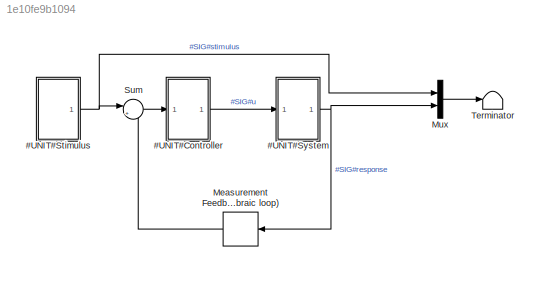
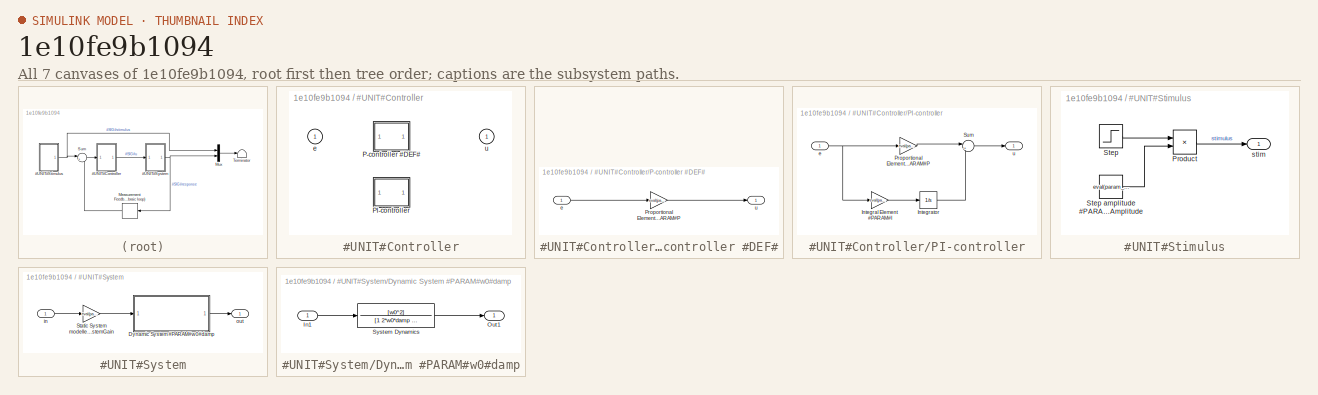
[diagram: thumbnail index - all 7 canvases of the model, root first then tree order]
MODEL slx_1e10fe9b1094
KIND model
WORKSPACE source: MAT-file member
WORKSPACE STOVICAL: struct (value not decoded)
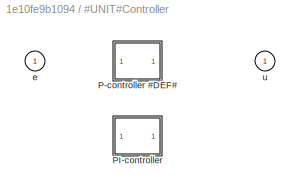
BLOCK [SubSystem] #UNIT#Controller
  Ports = [1, 1]
  RequestExecContextInheritance = off
  Variant = on
BLOCK [SubSystem] #UNIT#Controller/P-controller #DEF#
  Ports = [1, 1]
  RequestExecContextInheritance = off
  VariantControl = varsys_cond_9012b32a464bd3373daa07b1fc176436 == 1
BLOCK [Gain] #UNIT#Controller/P-controller #DEF#/Proportional Element #PARAM#P
  Gain = eval(param_3c9c89c931886ed3127a48daf9f95107)
  OutDataTypeStr = Inherit: Inherit via internal rule
  ParamDataTypeStr = Inherit: Inherit via internal rule
  SaturateOnIntegerOverflow = off
BLOCK [Inport] #UNIT#Controller/P-controller #DEF#/e
  IconDisplay = Port number
BLOCK [Outport] #UNIT#Controller/P-controller #DEF#/u
  IconDisplay = Port number
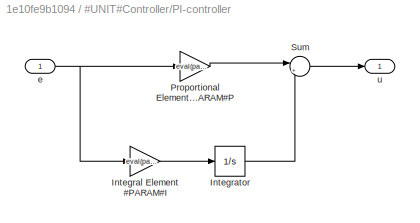
BLOCK [SubSystem] #UNIT#Controller/PI-controller
  Ports = [1, 1]
  RequestExecContextInheritance = off
  VariantControl = varsys_cond_9012b32a464bd3373daa07b1fc176436 == 2
BLOCK [Gain] #UNIT#Controller/PI-controller/Integral Element #PARAM#I
  Gain = eval(param_a6ec8c1abcd3e361be1ac1b9cb9444f5)
  OutDataTypeStr = Inherit: Inherit via internal rule
  ParamDataTypeStr = Inherit: Inherit via internal rule
  SaturateOnIntegerOverflow = off
BLOCK [Integrator] #UNIT#Controller/PI-controller/Integrator
  Ports = [1, 1]
BLOCK [Gain] #UNIT#Controller/PI-controller/Proportional Element #PARAM#P
  Gain = eval(param_5f7e5cb4a090d61c0e7cb0acc03122bf)
  OutDataTypeStr = Inherit: Inherit via internal rule
  ParamDataTypeStr = Inherit: Inherit via internal rule
  SaturateOnIntegerOverflow = off
BLOCK [Sum] #UNIT#Controller/PI-controller/Sum
  IconShape = round
  InputSameDT = off
  Inputs = |++
  OutDataTypeStr = Inherit: Inherit via internal rule
  Ports = [2, 1]
  SaturateOnIntegerOverflow = off
BLOCK [Inport] #UNIT#Controller/PI-controller/e
  IconDisplay = Port number
BLOCK [Outport] #UNIT#Controller/PI-controller/u
  IconDisplay = Port number
BLOCK [Inport] #UNIT#Controller/e
  IconDisplay = Port number
BLOCK [Outport] #UNIT#Controller/u
  IconDisplay = Port number
BLOCK [SubSystem] #UNIT#Stimulus
  Ports = [0, 1]
  RequestExecContextInheritance = off
BLOCK [Product] #UNIT#Stimulus/Product
  InputSameDT = off
  OutDataTypeStr = Inherit: Inherit via internal rule
  Ports = [2, 1]
  RndMeth = Floor
  SaturateOnIntegerOverflow = off
BLOCK [Step] #UNIT#Stimulus/Step
  SampleTime = 0
  Time = 0.1
BLOCK [Constant] #UNIT#Stimulus/Step amplitude #PARAM#Amplitude
  Value = eval(param_198a5ba83d87bd2227ff7bec4eafe564)
BLOCK [Outport] #UNIT#Stimulus/stim
  IconDisplay = Port number
BLOCK [SubSystem] #UNIT#System
  Ports = [1, 1]
  RequestExecContextInheritance = off
BLOCK [SubSystem] #UNIT#System/Dynamic System #PARAM#w0#damp
  Ports = [1, 1]
  RequestExecContextInheritance = off
BLOCK [Inport] #UNIT#System/Dynamic System #PARAM#w0#damp/In1
  IconDisplay = Port number
BLOCK [Outport] #UNIT#System/Dynamic System #PARAM#w0#damp/Out1
  IconDisplay = Port number
BLOCK [TransferFcn] #UNIT#System/Dynamic System #PARAM#w0#damp/System Dynamics
  Denominator = [1 2*w0*damp w0^2 ]
  Numerator = [w0^2]
BLOCK [Gain] #UNIT#System/Static System modelled by gain block #PARAM#SystemGain
  Gain = eval(param_5d6f2ad7a9e66dc7adc2c2fe631bc1c7)
  OutDataTypeStr = Inherit: Inherit via internal rule
  ParamDataTypeStr = Inherit: Inherit via internal rule
  SaturateOnIntegerOverflow = off
BLOCK [Inport] #UNIT#System/in
  IconDisplay = Port number
BLOCK [Outport] #UNIT#System/out
  IconDisplay = Port number
BLOCK [Delay] Measurement Feedback (avoids algebraic loop)
  DelayLength = 1
  InitialCondition = 0
  InputPortMap = u0
  Ports = [1, 1]
BLOCK [Mux] Mux
  DisplayOption = bar
  Inputs = 2
  Ports = [2, 1]
BLOCK [Sum] Sum
  IconShape = round
  InputSameDT = off
  Inputs = |+-
  OutDataTypeStr = Inherit: Inherit via internal rule
  Ports = [2, 1]
  SaturateOnIntegerOverflow = off
BLOCK [Terminator] Terminator
LINE #UNIT#Controller/P-controller #DEF#/Proportional Element #PARAM#P:1 -> #UNIT#Controller/P-controller #DEF#/u:1
LINE #UNIT#Controller/P-controller #DEF#/e:1 -> #UNIT#Controller/P-controller #DEF#/Proportional Element #PARAM#P:1
LINE #UNIT#Controller/PI-controller/Integral Element #PARAM#I:1 -> #UNIT#Controller/PI-controller/Integrator:1
LINE #UNIT#Controller/PI-controller/Integrator:1 -> #UNIT#Controller/PI-controller/Sum:2
LINE #UNIT#Controller/PI-controller/Proportional Element #PARAM#P:1 -> #UNIT#Controller/PI-controller/Sum:1
LINE #UNIT#Controller/PI-controller/Sum:1 -> #UNIT#Controller/PI-controller/u:1
NET #UNIT#Controller/PI-controller/e:1 -> #UNIT#Controller/PI-controller/Integral Element #PARAM#I:1, #UNIT#Controller/PI-controller/Proportional Element #PARAM#P:1
LINE #UNIT#Controller:1 -> #UNIT#System:1
LINE #UNIT#Stimulus/Product:1 -> #UNIT#Stimulus/stim:1
LINE #UNIT#Stimulus/Step amplitude #PARAM#Amplitude:1 -> #UNIT#Stimulus/Product:2
LINE #UNIT#Stimulus/Step:1 -> #UNIT#Stimulus/Product:1
NET #UNIT#Stimulus:1 -> Mux:1, Sum:1
LINE #UNIT#System/Dynamic System #PARAM#w0#damp/In1:1 -> #UNIT#System/Dynamic System #PARAM#w0#damp/System Dynamics:1
LINE #UNIT#System/Dynamic System #PARAM#w0#damp/System Dynamics:1 -> #UNIT#System/Dynamic System #PARAM#w0#damp/Out1:1
LINE #UNIT#System/Dynamic System #PARAM#w0#damp:1 -> #UNIT#System/out:1
LINE #UNIT#System/Static System modelled by gain block #PARAM#SystemGain:1 -> #UNIT#System/Dynamic System #PARAM#w0#damp:1
LINE #UNIT#System/in:1 -> #UNIT#System/Static System modelled by gain block #PARAM#SystemGain:1
NET #UNIT#System:1 -> Measurement Feedback (avoids algebraic loop):1, Mux:2
LINE Measurement Feedback (avoids algebraic loop):1 -> Sum:2
LINE Mux:1 -> Terminator:1
LINE Sum:1 -> #UNIT#Controller:1
note: NET lines group one-source signal fan-out (src -> all destinations, sorted); 1:1 wires keep LINE
